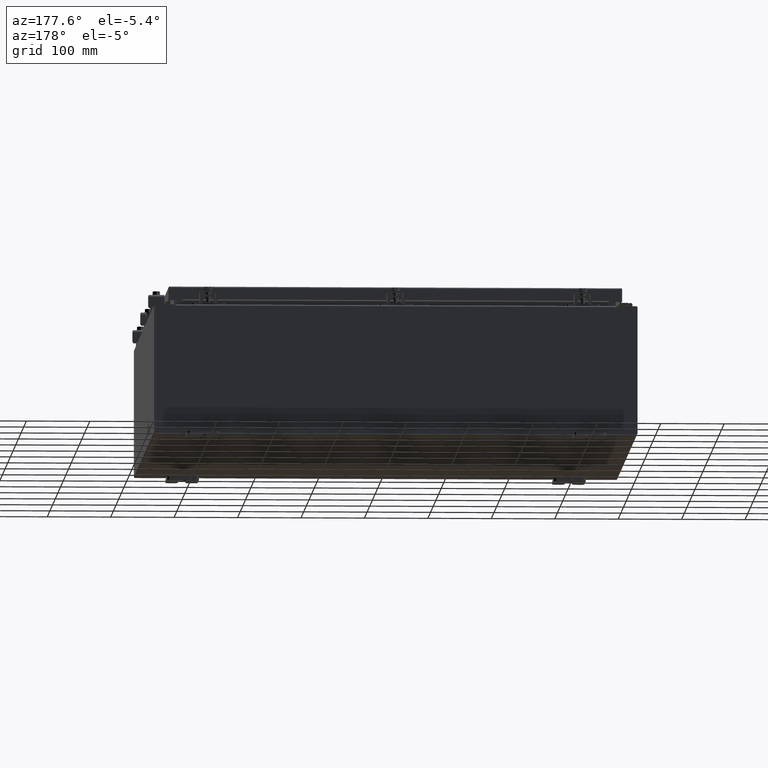
[diagram: clean part render]
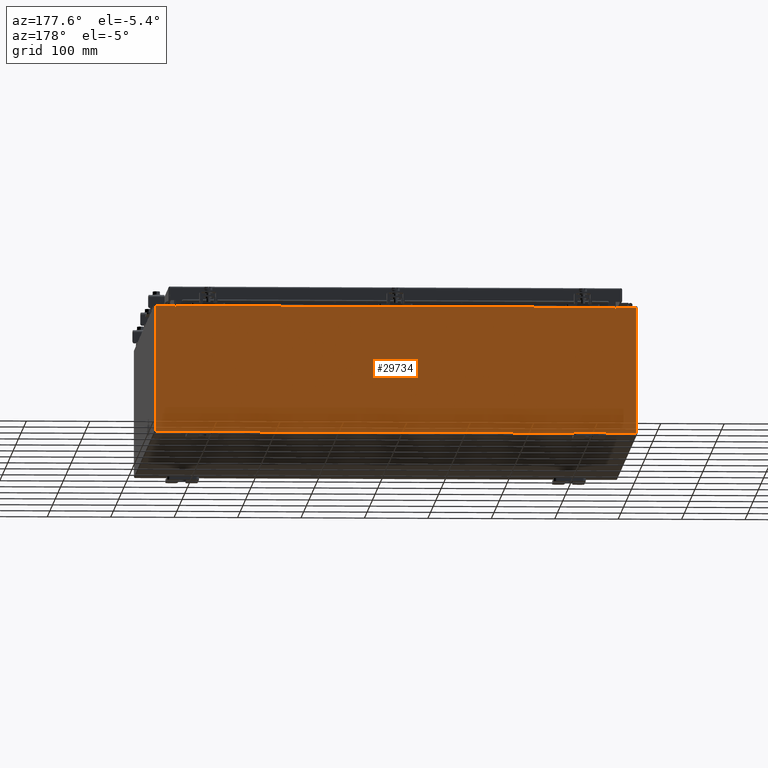
[diagram: same view with one face highlighted and labeled with its STEP entity id]
A machine part, auxiliary view. The second image highlights one B-rep face of the part: STEP entity #29734.
In plain terms, the highlighted planar face has unit normal (0, -1, 0).
Its self-contained STEP definition (entity closure, byte-faithful):
#975 = CARTESIAN_POINT ( 'NONE',  ( 14.92530000000000200, 0.0000000000000000000, 3.925300000000000500 ) ) ;
#1308 = DIRECTION ( 'NONE',  ( 0.0000000000000000000, -1.000000000000000000, 0.0000000000000000000 ) ) ;
#2196 = CARTESIAN_POINT ( 'NONE',  ( -14.92529999999999800, 0.0000000000000000000, -3.925299999999999600 ) ) ;
#2865 = EDGE_CURVE ( 'NONE', #14041, #13249, #28456, .T. ) ;
#3698 = CARTESIAN_POINT ( 'NONE',  ( 13.65587500000000200, 0.0000000000000000000, 3.874949999999999200 ) ) ;
#3990 = CARTESIAN_POINT ( 'NONE',  ( -14.92529999999999800, 0.0000000000000000000, 3.925300000000000500 ) ) ;
#4301 = ORIENTED_EDGE ( 'NONE', *, *, #2865, .F. ) ;
#4880 = VECTOR ( 'NONE', #25560, 39.37007874015748100 ) ;
#5488 = CIRCLE ( 'NONE', #12151, 0.01867499999999949400 ) ;
#6031 = VERTEX_POINT ( 'NONE', #33463 ) ;
#6727 = DIRECTION ( 'NONE',  ( 0.0000000000000000000, 0.0000000000000000000, -1.000000000000000000 ) ) ;
#7367 = ORIENTED_EDGE ( 'NONE', *, *, #32633, .T. ) ;
#7687 = VECTOR ( 'NONE', #16499, 39.37007874015748100 ) ;
#7993 = VERTEX_POINT ( 'NONE', #27068 ) ;
#9184 = CARTESIAN_POINT ( 'NONE',  ( -13.67454999999999500, 0.0000000000000000000, 3.925300000000000500 ) ) ;
#9284 = VECTOR ( 'NONE', #26377, 39.37007874015748100 ) ;
#9416 = EDGE_CURVE ( 'NONE', #18706, #6031, #21368, .T. ) ;
#9536 = DIRECTION ( 'NONE',  ( 0.0000000000000000000, 0.0000000000000000000, 1.000000000000000000 ) ) ;
#9612 = CARTESIAN_POINT ( 'NONE',  ( 0.0000000000000000000, 0.0000000000000000000, 0.0000000000000000000 ) ) ;
#9886 = ORIENTED_EDGE ( 'NONE', *, *, #18103, .T. ) ;
#10331 = CARTESIAN_POINT ( 'NONE',  ( 13.63720000000000400, 0.0000000000000000000, 0.0000000000000000000 ) ) ;
#10442 = EDGE_CURVE ( 'NONE', #18296, #33387, #17321, .T. ) ;
#10477 = VECTOR ( 'NONE', #27123, 39.37007874015748100 ) ;
#10613 = VERTEX_POINT ( 'NONE', #9184 ) ;
#10779 = ORIENTED_EDGE ( 'NONE', *, *, #15259, .T. ) ;
#11296 = ORIENTED_EDGE ( 'NONE', *, *, #35118, .F. ) ;
#11638 = CARTESIAN_POINT ( 'NONE',  ( 13.67455000000000200, 0.0000000000000000000, 3.874949999999999200 ) ) ;
#12151 = AXIS2_PLACEMENT_3D ( 'NONE', #3698, #24809, #6727 ) ;
#12507 = VECTOR ( 'NONE', #23132, 39.37007874015748100 ) ;
#12609 = LINE ( 'NONE', #975, #19693 ) ;
#13249 = VERTEX_POINT ( 'NONE', #11638 ) ;
#13318 = PLANE ( 'NONE',  #38790 ) ;
#13361 = VECTOR ( 'NONE', #27423, 39.37007874015748100 ) ;
#13588 = DIRECTION ( 'NONE',  ( -0.0000000000000000000, 1.000000000000000000, -0.0000000000000000000 ) ) ;
#14041 = VERTEX_POINT ( 'NONE', #36994 ) ;
#14810 = LINE ( 'NONE', #22487, #4880 ) ;
#15259 = EDGE_CURVE ( 'NONE', #33387, #23160, #18455, .T. ) ;
#15482 = CARTESIAN_POINT ( 'NONE',  ( -13.67454999999999500, 0.0000000000000000000, 0.0000000000000000000 ) ) ;
#16325 = CIRCLE ( 'NONE', #19070, 0.01867499999999949400 ) ;
#16499 = DIRECTION ( 'NONE',  ( 0.0000000000000000000, 0.0000000000000000000, 1.000000000000000000 ) ) ;
#17321 = LINE ( 'NONE', #2196, #9284 ) ;
#17526 = VECTOR ( 'NONE', #22932, 39.37007874015748100 ) ;
#18103 = EDGE_CURVE ( 'NONE', #23160, #10613, #25555, .T. ) ;
#18296 = VERTEX_POINT ( 'NONE', #38861 ) ;
#18417 = VERTEX_POINT ( 'NONE', #27320 ) ;
#18455 = LINE ( 'NONE', #39067, #10477 ) ;
#18706 = VERTEX_POINT ( 'NONE', #19389 ) ;
#18720 = ORIENTED_EDGE ( 'NONE', *, *, #28797, .F. ) ;
#19070 = AXIS2_PLACEMENT_3D ( 'NONE', #31678, #13588, #34697 ) ;
#19389 = CARTESIAN_POINT ( 'NONE',  ( -13.63719999999999600, 0.0000000000000000000, 3.912300000000000100 ) ) ;
#19693 = VECTOR ( 'NONE', #34233, 39.37007874015748100 ) ;
#20108 = CARTESIAN_POINT ( 'NONE',  ( -13.63719999999999600, 0.0000000000000000000, 0.0000000000000000000 ) ) ;
#20404 = VECTOR ( 'NONE', #20838, 39.37007874015748100 ) ;
#20447 = FACE_OUTER_BOUND ( 'NONE', #29129, .T. ) ;
#20528 = LINE ( 'NONE', #20108, #12507 ) ;
#20838 = DIRECTION ( 'NONE',  ( -4.340572780400004900E-014, 0.0000000000000000000, -1.000000000000000000 ) ) ;
#21368 = LINE ( 'NONE', #30310, #13361 ) ;
#21475 = ORIENTED_EDGE ( 'NONE', *, *, #10442, .T. ) ;
#21528 = ORIENTED_EDGE ( 'NONE', *, *, #9416, .T. ) ;
#22280 = CARTESIAN_POINT ( 'NONE',  ( 14.92530000000000200, 0.0000000000000000000, 3.925300000000000500 ) ) ;
#22396 = DIRECTION ( 'NONE',  ( 0.0000000000000000000, -0.0000000000000000000, -1.000000000000000000 ) ) ;
#22487 = CARTESIAN_POINT ( 'NONE',  ( -14.92529999999999800, 0.0000000000000000000, 3.925300000000000500 ) ) ;
#22932 = DIRECTION ( 'NONE',  ( 1.000000000000000000, 0.0000000000000000000, 0.0000000000000000000 ) ) ;
#23132 = DIRECTION ( 'NONE',  ( 0.0000000000000000000, 0.0000000000000000000, -1.000000000000000000 ) ) ;
#23160 = VERTEX_POINT ( 'NONE', #3990 ) ;
#24642 = ORIENTED_EDGE ( 'NONE', *, *, #38756, .F. ) ;
#24809 = DIRECTION ( 'NONE',  ( -0.0000000000000000000, 1.000000000000000000, -0.0000000000000000000 ) ) ;
#25555 = LINE ( 'NONE', #37960, #17526 ) ;
#25560 = DIRECTION ( 'NONE',  ( 1.000000000000000000, 0.0000000000000000000, 0.0000000000000000000 ) ) ;
#25595 = CARTESIAN_POINT ( 'NONE',  ( 13.63720000000000400, 0.0000000000000000000, 3.874949999999999200 ) ) ;
#25683 = VECTOR ( 'NONE', #9536, 39.37007874015748100 ) ;
#26377 = DIRECTION ( 'NONE',  ( -1.000000000000000000, -0.0000000000000000000, -0.0000000000000000000 ) ) ;
#26889 = EDGE_CURVE ( 'NONE', #14041, #38060, #14810, .T. ) ;
#27068 = CARTESIAN_POINT ( 'NONE',  ( -13.67454999999999500, 0.0000000000000000000, 3.874949999999999200 ) ) ;
#27123 = DIRECTION ( 'NONE',  ( -0.0000000000000000000, -0.0000000000000000000, 1.000000000000000000 ) ) ;
#27320 = CARTESIAN_POINT ( 'NONE',  ( -13.63719999999999600, 0.0000000000000000000, 3.874949999999999200 ) ) ;
#27423 = DIRECTION ( 'NONE',  ( 1.000000000000000000, 0.0000000000000000000, 0.0000000000000000000 ) ) ;
#28204 = EDGE_CURVE ( 'NONE', #18417, #7993, #16325, .T. ) ;
#28456 = LINE ( 'NONE', #29822, #20404 ) ;
#28657 = CARTESIAN_POINT ( 'NONE',  ( -14.92529999999999800, 0.0000000000000000000, -3.925299999999999600 ) ) ;
#28797 = EDGE_CURVE ( 'NONE', #18706, #18417, #20528, .T. ) ;
#29129 = EDGE_LOOP ( 'NONE', ( #24642, #38009, #18720, #21528, #11296, #38192, #4301, #30082, #7367, #21475, #10779, #9886 ) ) ;
#29734 = ADVANCED_FACE ( 'NONE', ( #20447 ), #13318, .F. ) ;
#29822 = CARTESIAN_POINT ( 'NONE',  ( 13.67454999999983300, 0.0000000000000000000, -5.933573842238779900E-013 ) ) ;
#30082 = ORIENTED_EDGE ( 'NONE', *, *, #26889, .T. ) ;
#30310 = CARTESIAN_POINT ( 'NONE',  ( -13.63719999999999800, 0.0000000000000000000, 3.912300000000000100 ) ) ;
#31678 = CARTESIAN_POINT ( 'NONE',  ( -13.65587499999999600, 0.0000000000000000000, 3.874949999999999200 ) ) ;
#31773 = LINE ( 'NONE', #10331, #7687 ) ;
#32633 = EDGE_CURVE ( 'NONE', #38060, #18296, #12609, .T. ) ;
#33173 = EDGE_CURVE ( 'NONE', #13249, #36388, #5488, .T. ) ;
#33387 = VERTEX_POINT ( 'NONE', #28657 ) ;
#33463 = CARTESIAN_POINT ( 'NONE',  ( 13.63720000000000400, 0.0000000000000000000, 3.912300000000000100 ) ) ;
#33719 = LINE ( 'NONE', #15482, #25683 ) ;
#34233 = DIRECTION ( 'NONE',  ( 0.0000000000000000000, 0.0000000000000000000, -1.000000000000000000 ) ) ;
#34697 = DIRECTION ( 'NONE',  ( 0.0000000000000000000, 0.0000000000000000000, -1.000000000000000000 ) ) ;
#35118 = EDGE_CURVE ( 'NONE', #36388, #6031, #31773, .T. ) ;
#36388 = VERTEX_POINT ( 'NONE', #25595 ) ;
#36994 = CARTESIAN_POINT ( 'NONE',  ( 13.67455000000000400, 0.0000000000000000000, 3.925300000000000500 ) ) ;
#37960 = CARTESIAN_POINT ( 'NONE',  ( -14.92529999999999800, 0.0000000000000000000, 3.925300000000000500 ) ) ;
#38009 = ORIENTED_EDGE ( 'NONE', *, *, #28204, .F. ) ;
#38060 = VERTEX_POINT ( 'NONE', #22280 ) ;
#38192 = ORIENTED_EDGE ( 'NONE', *, *, #33173, .F. ) ;
#38756 = EDGE_CURVE ( 'NONE', #7993, #10613, #33719, .T. ) ;
#38790 = AXIS2_PLACEMENT_3D ( 'NONE', #9612, #1308, #22396 ) ;
#38861 = CARTESIAN_POINT ( 'NONE',  ( 14.92530000000000200, 0.0000000000000000000, -3.925299999999999600 ) ) ;
#39067 = CARTESIAN_POINT ( 'NONE',  ( -14.92529999999999800, 0.0000000000000000000, 3.925300000000000500 ) ) ;